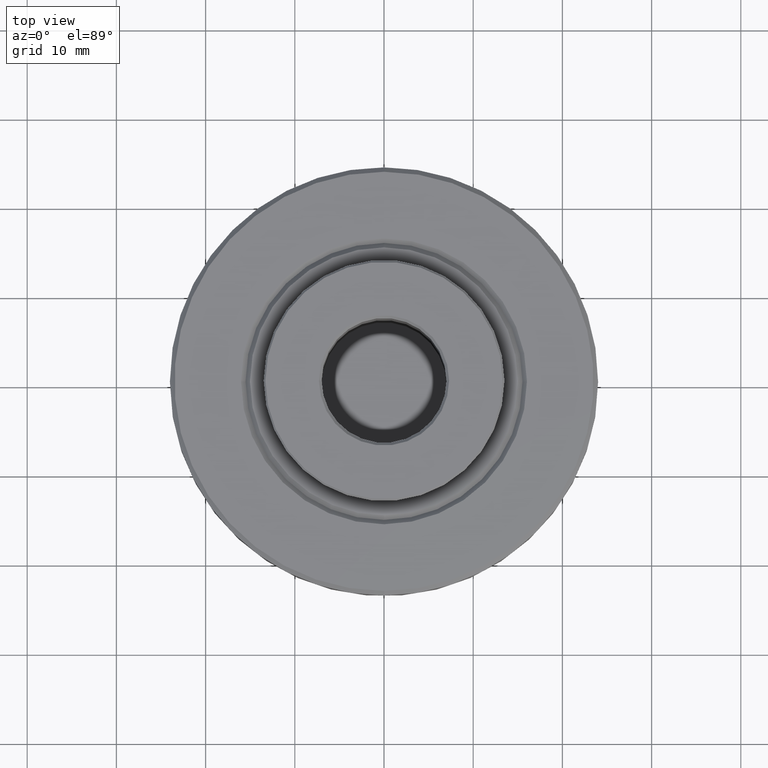
[diagram: clean part render]
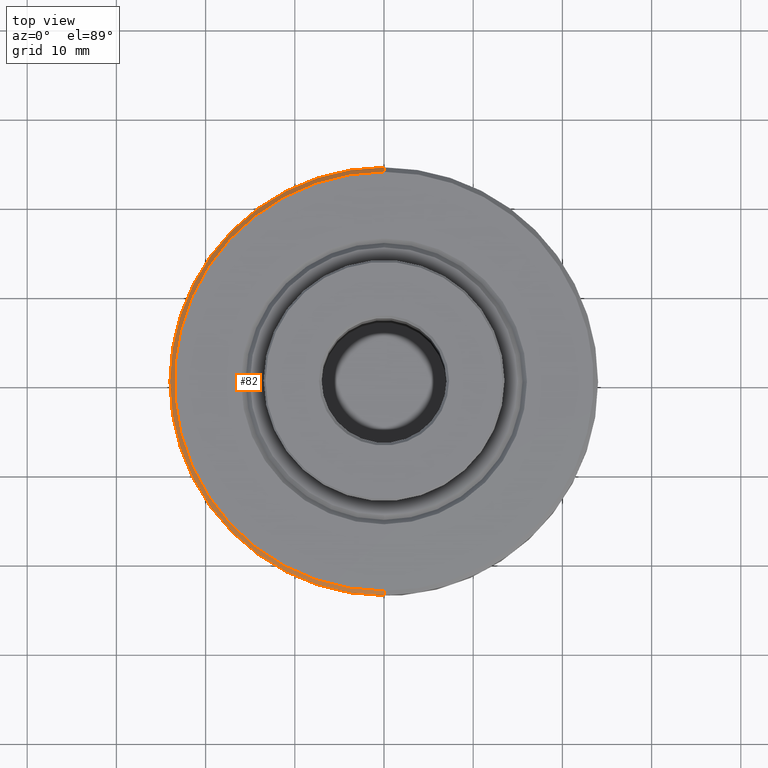
[diagram: same view with one face highlighted and labeled with its STEP entity id]
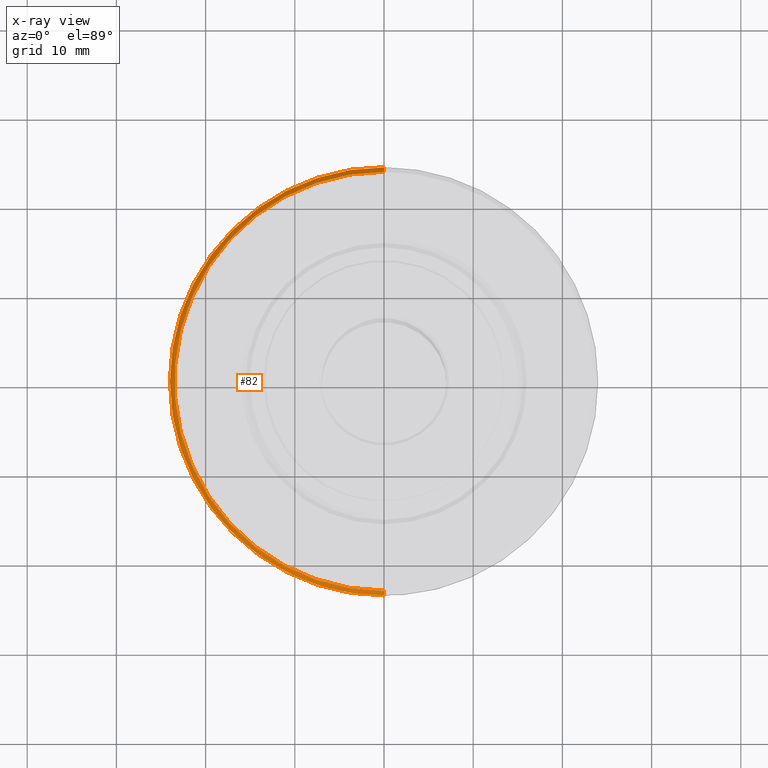
[diagram: x-ray of the same camera — body ghosted, the highlighted face saturated]
A machine part, top view. The second image highlights one B-rep face of the part: STEP entity #82.
The next image is the same camera in x-ray: the body ghosted, the highlighted face saturated — about 0% of this face is hidden behind the body in this view.
In plain terms, the highlighted conical surface has half-angle 45 deg.
Its self-contained STEP definition (entity closure, byte-faithful):
#7 = EDGE_LOOP ( 'NONE', ( #1338, #1175, #1674, #702, #1922 ) ) ;
#42 = CARTESIAN_POINT ( 'NONE',  ( 0.0000000000000000000, 24.00000000000000000, 11.93848561500000100 ) ) ;
#59 = VERTEX_POINT ( 'NONE', #815 ) ;
#82 = ADVANCED_FACE ( 'NONE', ( #532 ), #719, .T. ) ;
#123 = LINE ( 'NONE', #1312, #533 ) ;
#220 = DIRECTION ( 'NONE',  ( 0.0000000000000000000, -3.690901012716610800E-017, -1.000000000000000000 ) ) ;
#297 = DIRECTION ( 'NONE',  ( -0.0000000000000000000, -0.0000000000000000000, 1.000000000000000000 ) ) ;
#381 = AXIS2_PLACEMENT_3D ( 'NONE', #1568, #652, #1717 ) ;
#388 = LINE ( 'NONE', #1200, #1863 ) ;
#407 = CIRCLE ( 'NONE', #1678, 23.49999999999995000 ) ;
#420 = EDGE_CURVE ( 'NONE', #1161, #1905, #1457, .T. ) ;
#532 = FACE_OUTER_BOUND ( 'NONE', #7, .T. ) ;
#533 = VECTOR ( 'NONE', #874, 1000.000000000000000 ) ;
#573 = EDGE_CURVE ( 'NONE', #1905, #1612, #1309, .T. ) ;
#627 = DIRECTION ( 'NONE',  ( -0.0000000000000000000, 3.690901012716610800E-017, 1.000000000000000000 ) ) ;
#652 = DIRECTION ( 'NONE',  ( -0.0000000000000000000, -0.0000000000000000000, 1.000000000000000000 ) ) ;
#702 = ORIENTED_EDGE ( 'NONE', *, *, #420, .T. ) ;
#719 = CONICAL_SURFACE ( 'NONE', #1928, 23.50000000000000000, 0.7853981633974482800 ) ;
#728 = AXIS2_PLACEMENT_3D ( 'NONE', #1204, #297, #1354 ) ;
#815 = CARTESIAN_POINT ( 'NONE',  ( 0.0000000000000000000, 23.49999999999995000, 12.43848561500005100 ) ) ;
#851 = CARTESIAN_POINT ( 'NONE',  ( 0.0000000000000000000, 0.0000000000000000000, 12.43848561500000100 ) ) ;
#874 = DIRECTION ( 'NONE',  ( 0.0000000000000000000, 0.7071067811865474600, -0.7071067811865475700 ) ) ;
#886 = CARTESIAN_POINT ( 'NONE',  ( -24.00000000000000000, 0.0000000000000000000, 11.93848561500000100 ) ) ;
#1012 = VERTEX_POINT ( 'NONE', #1820 ) ;
#1065 = EDGE_CURVE ( 'NONE', #59, #1012, #407, .T. ) ;
#1081 = CARTESIAN_POINT ( 'NONE',  ( 2.939152317953647900E-015, -24.00000000000000000, 11.93848561500000100 ) ) ;
#1161 = VERTEX_POINT ( 'NONE', #42 ) ;
#1175 = ORIENTED_EDGE ( 'NONE', *, *, #1065, .F. ) ;
#1200 = CARTESIAN_POINT ( 'NONE',  ( 2.877919977996280300E-015, -23.50000000000000000, 12.43848561500000100 ) ) ;
#1204 = CARTESIAN_POINT ( 'NONE',  ( 0.0000000000000000000, 0.0000000000000000000, 11.93848561500000100 ) ) ;
#1309 = CIRCLE ( 'NONE', #381, 24.00000000000000000 ) ;
#1312 = CARTESIAN_POINT ( 'NONE',  ( 0.0000000000000000000, 23.50000000000000000, 12.43848561500000100 ) ) ;
#1331 = EDGE_CURVE ( 'NONE', #59, #1161, #123, .T. ) ;
#1335 = DIRECTION ( 'NONE',  ( 0.0000000000000000000, 1.000000000000000000, 0.0000000000000000000 ) ) ;
#1338 = ORIENTED_EDGE ( 'NONE', *, *, #1487, .F. ) ;
#1354 = DIRECTION ( 'NONE',  ( -1.000000000000000000, 0.0000000000000000000, 0.0000000000000000000 ) ) ;
#1457 = CIRCLE ( 'NONE', #728, 24.00000000000000000 ) ;
#1487 = EDGE_CURVE ( 'NONE', #1012, #1612, #388, .T. ) ;
#1514 = DIRECTION ( 'NONE',  ( 8.659560562354931600E-017, -0.7071067811865474600, -0.7071067811865475700 ) ) ;
#1546 = CARTESIAN_POINT ( 'NONE',  ( 0.0000000000000000000, 1.792753937581369100E-030, 12.43848561500005100 ) ) ;
#1568 = CARTESIAN_POINT ( 'NONE',  ( 0.0000000000000000000, 0.0000000000000000000, 11.93848561500000100 ) ) ;
#1612 = VERTEX_POINT ( 'NONE', #1081 ) ;
#1674 = ORIENTED_EDGE ( 'NONE', *, *, #1331, .T. ) ;
#1678 = AXIS2_PLACEMENT_3D ( 'NONE', #1546, #627, #1696 ) ;
#1696 = DIRECTION ( 'NONE',  ( 0.0000000000000000000, 1.000000000000000000, 0.0000000000000000000 ) ) ;
#1717 = DIRECTION ( 'NONE',  ( -1.000000000000000000, 0.0000000000000000000, 0.0000000000000000000 ) ) ;
#1820 = CARTESIAN_POINT ( 'NONE',  ( 2.908536147974961000E-015, -23.49999999999995000, 12.43848561500005100 ) ) ;
#1863 = VECTOR ( 'NONE', #1514, 1000.000000000000000 ) ;
#1905 = VERTEX_POINT ( 'NONE', #886 ) ;
#1922 = ORIENTED_EDGE ( 'NONE', *, *, #573, .T. ) ;
#1928 = AXIS2_PLACEMENT_3D ( 'NONE', #851, #220, #1335 ) ;